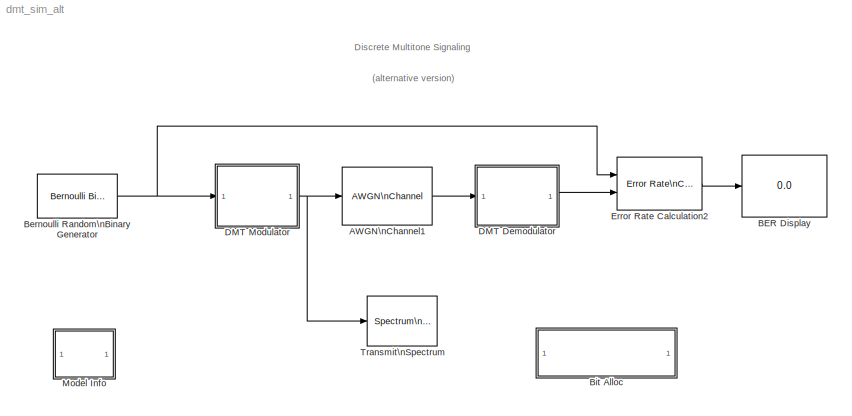
MODEL dmt_sim_alt
KIND model
WORKSPACE source: external: M-Code  (data not in archive)
BLOCK [Reference] AWGN\nChannel1  REF=commchan2/AWGN\nChannel
  EbNodB = 10
  EsNodB = 10
  Ports = [1, 1]
  Ps = 1
  SNRdB = 10
  ShowPortLabels = on
  SourceBlock = commchan2/AWGN\nChannel
  SourceType = AWGN Channel
  Tsym = 1
  bitsPerSym = 1
  noiseMode = Variance from mask
  seed = 12345
  variance = 0.0005
BLOCK [Display] BER Display
  Decimation = 1
  Ports = [1]
BLOCK [Reference] Bernoulli Random\nBinary Generator  REF=commrandsrc2/Bernoulli Binary\nGenerator
  P = 0.5
  Ports = [0, 1]
  ShowPortLabels = on
  SourceBlock = commrandsrc2/Bernoulli Binary\nGenerator
  SourceType = Bernoulli Binary Generator
  Ts = (1/4000)/sum(b)
  frameBased = on
  orient = off
  sampPerFrame = sum(b)
  seed = 1
BLOCK [SubSystem] Bit Alloc
  EnableExecutionContextPropagation = on
  MaskDisplay = disp('Load and Plot\\nBit Allocation Vector')
  MaskIconFrame = on
  MaskIconOpaque = on
  MaskIconRotate = none
  MaskIconUnits = autoscale
  MinAlgLoopOccurrences = off
  OpenFcn = load('bit_allocation'),plot(b),axis([0 257 1 11]),title('Bit Allocations'),xlabel('Channel'),ylabel('No. Bits')
  Ports = []
  TreatAsAtomicUnit = off
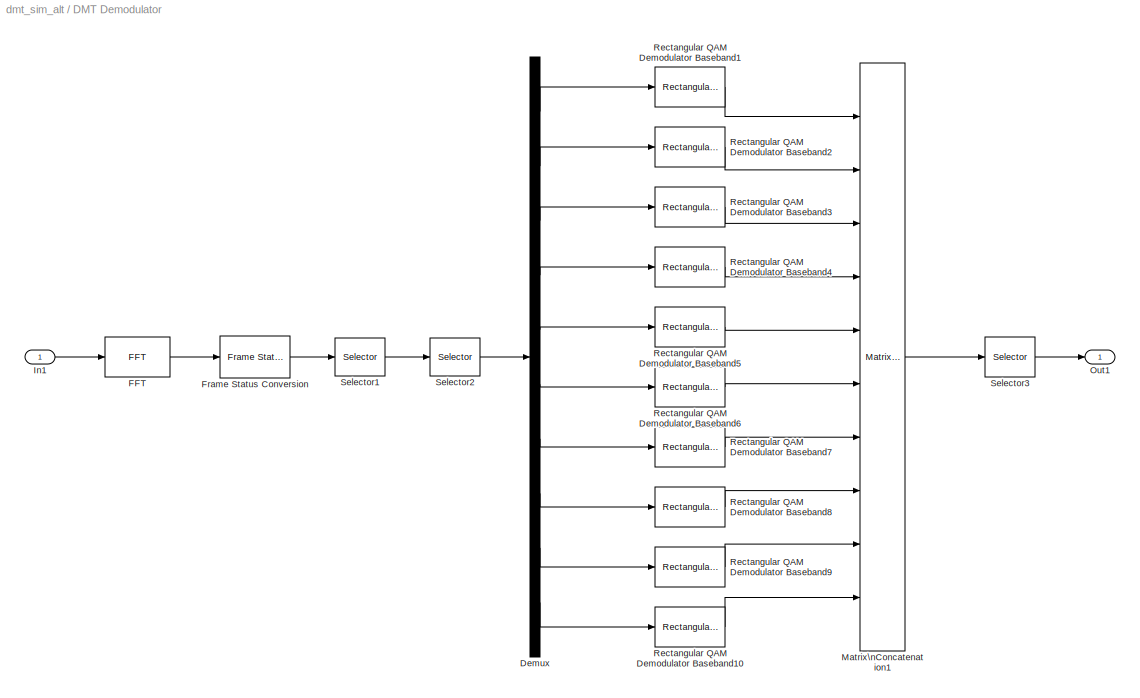
BLOCK [SubSystem] DMT Demodulator
  EnableExecutionContextPropagation = on
  MaskDisplay = disp('DMT\\nDemodulator')
  MaskIconFrame = on
  MaskIconOpaque = on
  MaskIconRotate = none
  MaskIconUnits = autoscale
  MinAlgLoopOccurrences = off
  Ports = [1, 1]
  TreatAsAtomicUnit = off
BLOCK [Demux] DMT Demodulator/Demux
  Outputs = bitalloc(1:end)
  Ports = [1, 10]
BLOCK [Reference] DMT Demodulator/FFT  REF=dspxfrm3/FFT
  BitRevOrder = off
  CompMethod = Table lookup
  Ports = [1, 1]
  SkipNorm = off
  SourceBlock = dspxfrm3/FFT
  SourceType = FFT
  TableOpt = Speed
  accumFracLength = 30
  accumMode = Same as product output
  accumWordLength = 32
  additionalParams = off
  allowOverrides = on
  firstCoeffFracLength = 15
  firstCoeffMode = User-defined
  firstCoeffWordLength = 16
  outputFracLength = 15
  outputMode = Same as input
  outputWordLength = 16
  overflowMode = off
  prodOutputFracLength = 30
  prodOutputMode = Same as input
  prodOutputWordLength = 32
  roundingMode = Floor
BLOCK [Reference] DMT Demodulator/Frame Status Conversion  REF=dspsigattribs/Frame Status\nConversion
  Ports = [1, 1]
  ShowPortLabels = off
  SourceBlock = dspsigattribs/Frame Status\nConversion
  SourceType = Frame Status Conversion
  growRefPort = off
  outframe = Frame-based
BLOCK [Inport] DMT Demodulator/In1
  IconDisplay = Port number
  LatchInput = off
BLOCK [Reference] DMT Demodulator/Matrix\nConcatenation1  REF=simulink/Math\nOperations/Matrix\nConcatenation
  Ports = [10, 1]
  SourceBlock = simulink/Math\nOperations/Matrix\nConcatenation
  SourceType = Matrix Concatenation
  catMethod = Vertical
  numInports = 10
BLOCK [Outport] DMT Demodulator/Out1
  BusOutputAsStruct = off
  IconDisplay = Port number
BLOCK [Reference] DMT Demodulator/Rectangular QAM Demodulator Baseband1  REF=commdigbbndam2/Rectangular QAM\nDemodulator\nBaseband
  AvgPow = 1
  Dec = Binary
  M = 2^1
  MinDist = 2
  OutType = Bit
  PeakPow = 1
  Ph = 0
  Ports = [1, 1]
  PowType = Min. distance between symbols
  SourceBlock = commdigbbndam2/Rectangular QAM\nDemodulator\nBaseband
  SourceType = Rectangular QAM Demodulator Baseband
  numSamp = 1
BLOCK [Reference] DMT Demodulator/Rectangular QAM Demodulator Baseband10  REF=commdigbbndam2/Rectangular QAM\nDemodulator\nBaseband
  AvgPow = 1
  Dec = Binary
  M = 2^10
  MinDist = 2
  OutType = Bit
  PeakPow = 1
  Ph = 0
  Ports = [1, 1]
  PowType = Min. distance between symbols
  SourceBlock = commdigbbndam2/Rectangular QAM\nDemodulator\nBaseband
  SourceType = Rectangular QAM Demodulator Baseband
  numSamp = 1
BLOCK [Reference] DMT Demodulator/Rectangular QAM Demodulator Baseband2  REF=commdigbbndam2/Rectangular QAM\nDemodulator\nBaseband
  AvgPow = 1
  Dec = Binary
  M = 2^2
  MinDist = 2
  OutType = Bit
  PeakPow = 1
  Ph = 0
  Ports = [1, 1]
  PowType = Min. distance between symbols
  SourceBlock = commdigbbndam2/Rectangular QAM\nDemodulator\nBaseband
  SourceType = Rectangular QAM Demodulator Baseband
  numSamp = 1
BLOCK [Reference] DMT Demodulator/Rectangular QAM Demodulator Baseband3  REF=commdigbbndam2/Rectangular QAM\nDemodulator\nBaseband
  AvgPow = 1
  Dec = Binary
  M = 2^3
  MinDist = 2
  OutType = Bit
  PeakPow = 1
  Ph = 0
  Ports = [1, 1]
  PowType = Min. distance between symbols
  SourceBlock = commdigbbndam2/Rectangular QAM\nDemodulator\nBaseband
  SourceType = Rectangular QAM Demodulator Baseband
  numSamp = 1
BLOCK [Reference] DMT Demodulator/Rectangular QAM Demodulator Baseband4  REF=commdigbbndam2/Rectangular QAM\nDemodulator\nBaseband
  AvgPow = 1
  Dec = Binary
  M = 2^4
  MinDist = 2
  OutType = Bit
  PeakPow = 1
  Ph = 0
  Ports = [1, 1]
  PowType = Min. distance between symbols
  SourceBlock = commdigbbndam2/Rectangular QAM\nDemodulator\nBaseband
  SourceType = Rectangular QAM Demodulator Baseband
  numSamp = 1
BLOCK [Reference] DMT Demodulator/Rectangular QAM Demodulator Baseband5  REF=commdigbbndam2/Rectangular QAM\nDemodulator\nBaseband
  AvgPow = 1
  Dec = Binary
  M = 2^5
  MinDist = 2
  OutType = Bit
  PeakPow = 1
  Ph = 0
  Ports = [1, 1]
  PowType = Min. distance between symbols
  SourceBlock = commdigbbndam2/Rectangular QAM\nDemodulator\nBaseband
  SourceType = Rectangular QAM Demodulator Baseband
  numSamp = 1
BLOCK [Reference] DMT Demodulator/Rectangular QAM Demodulator Baseband6  REF=commdigbbndam2/Rectangular QAM\nDemodulator\nBaseband
  AvgPow = 1
  Dec = Binary
  M = 2^6
  MinDist = 2
  OutType = Bit
  PeakPow = 1
  Ph = 0
  Ports = [1, 1]
  PowType = Min. distance between symbols
  SourceBlock = commdigbbndam2/Rectangular QAM\nDemodulator\nBaseband
  SourceType = Rectangular QAM Demodulator Baseband
  numSamp = 1
BLOCK [Reference] DMT Demodulator/Rectangular QAM Demodulator Baseband7  REF=commdigbbndam2/Rectangular QAM\nDemodulator\nBaseband
  AvgPow = 1
  Dec = Binary
  M = 2^7
  MinDist = 2
  OutType = Bit
  PeakPow = 1
  Ph = 0
  Ports = [1, 1]
  PowType = Min. distance between symbols
  SourceBlock = commdigbbndam2/Rectangular QAM\nDemodulator\nBaseband
  SourceType = Rectangular QAM Demodulator Baseband
  numSamp = 1
BLOCK [Reference] DMT Demodulator/Rectangular QAM Demodulator Baseband8  REF=commdigbbndam2/Rectangular QAM\nDemodulator\nBaseband
  AvgPow = 1
  Dec = Binary
  M = 2^8
  MinDist = 2
  OutType = Bit
  PeakPow = 1
  Ph = 0
  Ports = [1, 1]
  PowType = Min. distance between symbols
  SourceBlock = commdigbbndam2/Rectangular QAM\nDemodulator\nBaseband
  SourceType = Rectangular QAM Demodulator Baseband
  numSamp = 1
BLOCK [Reference] DMT Demodulator/Rectangular QAM Demodulator Baseband9  REF=commdigbbndam2/Rectangular QAM\nDemodulator\nBaseband
  AvgPow = 1
  Dec = Binary
  M = 2^9
  MinDist = 2
  OutType = Bit
  PeakPow = 1
  Ph = 0
  Ports = [1, 1]
  PowType = Min. distance between symbols
  SourceBlock = commdigbbndam2/Rectangular QAM\nDemodulator\nBaseband
  SourceType = Rectangular QAM Demodulator Baseband
  numSamp = 1
BLOCK [Selector] DMT Demodulator/Selector1
  Elements = [1:length(b)]
  InputPortWidth = 2*length(b)
  Ports = [1, 1]
BLOCK [Selector] DMT Demodulator/Selector2
  Elements = scrambled
  InputPortWidth = length(b)
  Ports = [1, 1]
BLOCK [Selector] DMT Demodulator/Selector3
  Elements = J
  InputPortWidth = sum(b)
  Ports = [1, 1]
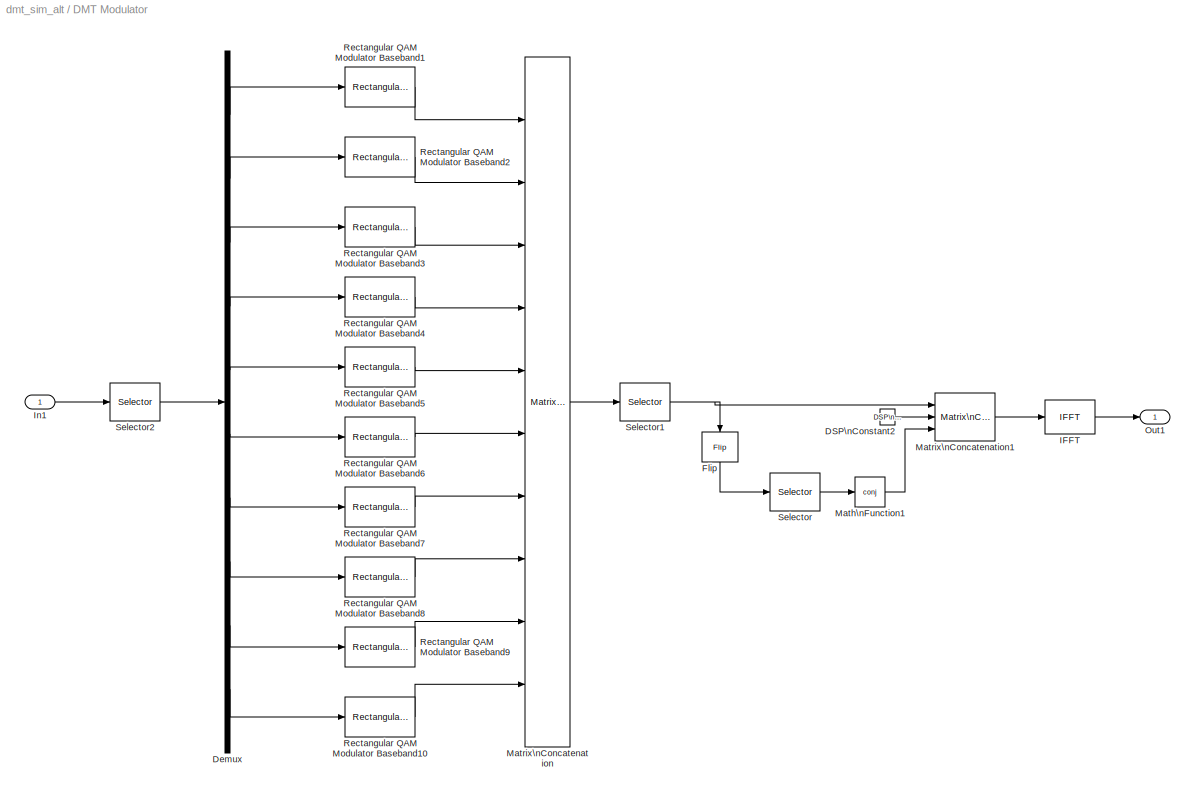
BLOCK [SubSystem] DMT Modulator
  EnableExecutionContextPropagation = on
  MaskDisplay = disp('DMT\\nModulator')
  MaskIconFrame = on
  MaskIconOpaque = on
  MaskIconRotate = none
  MaskIconUnits = autoscale
  MinAlgLoopOccurrences = off
  Ports = [1, 1]
  TreatAsAtomicUnit = off
BLOCK [Reference] DMT Modulator/DSP\nConstant2  REF=dspsrcs4/DSP\nConstant
  FramebasedOutput = on
  InterpretAs1D = off
  Ports = [0, 1]
  SampleMode = Discrete
  ShowPortLabels = on
  SourceBlock = dspsrcs4/DSP\nConstant
  SourceType = DSP Constant
  Ts = (1/4000)
  Value = 0
  additionalParams = off
  allowOverrides = on
  continuousOutput = Sample-based
  dataType = Inherit from 'Constant value'
  discreteOutput = Frame-based
  fracBitsMode = Best precision
  framePeriod = (1/4000)
  numFracBits = 15
  sampTime = (1/4000)
  udDataType = sfix(16)
  wordLen = 16
BLOCK [Demux] DMT Modulator/Demux
  Outputs = [[1:10].*bitalloc(1:end)]'
  Ports = [1, 10]
BLOCK [Reference] DMT Modulator/Flip  REF=dspindex/Flip
  Ports = [1, 1]
  SourceBlock = dspindex/Flip
  SourceType = Flip
  dim = Columns
BLOCK [Reference] DMT Modulator/IFFT  REF=dspxfrm3/IFFT
  BitRevOrder = off
  CompMethod = Table lookup
  Ports = [1, 1]
  SkipNorm = off
  SourceBlock = dspxfrm3/IFFT
  SourceType = IFFT
  TableOpt = Speed
  accumFracLength = 30
  accumMode = Same as product output
  accumWordLength = 32
  additionalParams = off
  allowOverrides = on
  cs_in = on
  firstCoeffFracLength = 15
  firstCoeffMode = User-defined
  firstCoeffWordLength = 16
  mode = Real
  outputFracLength = 15
  outputMode = Same as input
  outputWordLength = 16
  overflowMode = off
  prodOutputFracLength = 30
  prodOutputMode = Same as input
  prodOutputWordLength = 32
  roundingMode = Floor
BLOCK [Inport] DMT Modulator/In1
  IconDisplay = Port number
  LatchInput = off
BLOCK [Math] DMT Modulator/Math\nFunction1
  Operator = conj
  Ports = [1, 1]
BLOCK [Reference] DMT Modulator/Matrix\nConcatenation  REF=simulink/Math\nOperations/Matrix\nConcatenation
  Ports = [10, 1]
  SourceBlock = simulink/Math\nOperations/Matrix\nConcatenation
  SourceType = Matrix Concatenation
  catMethod = Vertical
  numInports = 10
BLOCK [Reference] DMT Modulator/Matrix\nConcatenation1  REF=simulink/Math\nOperations/Matrix\nConcatenation
  Ports = [3, 1]
  SourceBlock = simulink/Math\nOperations/Matrix\nConcatenation
  SourceType = Matrix Concatenation
  catMethod = Vertical
  numInports = 3
BLOCK [Outport] DMT Modulator/Out1
  BusOutputAsStruct = off
  IconDisplay = Port number
BLOCK [Reference] DMT Modulator/Rectangular QAM Modulator Baseband1  REF=commdigbbndam2/Rectangular QAM\nModulator\nBaseband
  AvgPow = 1
  Enc = Binary
  InType = Bit
  M = 2^1
  MinDist = 2
  PeakPow = 1
  Ph = 0
  Ports = [1, 1]
  PowType = Min. distance between symbols
  SourceBlock = commdigbbndam2/Rectangular QAM\nModulator\nBaseband
  SourceType = Rectangular QAM Modulator Baseband
  numSamp = 1
BLOCK [Reference] DMT Modulator/Rectangular QAM Modulator Baseband10  REF=commdigbbndam2/Rectangular QAM\nModulator\nBaseband
  AvgPow = 1
  Enc = Binary
  InType = Bit
  M = 2^10
  MinDist = 2
  PeakPow = 1
  Ph = 0
  Ports = [1, 1]
  PowType = Min. distance between symbols
  SourceBlock = commdigbbndam2/Rectangular QAM\nModulator\nBaseband
  SourceType = Rectangular QAM Modulator Baseband
  numSamp = 1
BLOCK [Reference] DMT Modulator/Rectangular QAM Modulator Baseband2  REF=commdigbbndam2/Rectangular QAM\nModulator\nBaseband
  AvgPow = 1
  Enc = Binary
  InType = Bit
  M = 2^2
  MinDist = 2
  PeakPow = 1
  Ph = 0
  Ports = [1, 1]
  PowType = Min. distance between symbols
  SourceBlock = commdigbbndam2/Rectangular QAM\nModulator\nBaseband
  SourceType = Rectangular QAM Modulator Baseband
  numSamp = 1
BLOCK [Reference] DMT Modulator/Rectangular QAM Modulator Baseband3  REF=commdigbbndam2/Rectangular QAM\nModulator\nBaseband
  AvgPow = 1
  Enc = Binary
  InType = Bit
  M = 2^3
  MinDist = 2
  PeakPow = 1
  Ph = 0
  Ports = [1, 1]
  PowType = Min. distance between symbols
  SourceBlock = commdigbbndam2/Rectangular QAM\nModulator\nBaseband
  SourceType = Rectangular QAM Modulator Baseband
  numSamp = 1
BLOCK [Reference] DMT Modulator/Rectangular QAM Modulator Baseband4  REF=commdigbbndam2/Rectangular QAM\nModulator\nBaseband
  AvgPow = 1
  Enc = Binary
  InType = Bit
  M = 2^4
  MinDist = 2
  PeakPow = 1
  Ph = 0
  Ports = [1, 1]
  PowType = Min. distance between symbols
  SourceBlock = commdigbbndam2/Rectangular QAM\nModulator\nBaseband
  SourceType = Rectangular QAM Modulator Baseband
  numSamp = 1
BLOCK [Reference] DMT Modulator/Rectangular QAM Modulator Baseband5  REF=commdigbbndam2/Rectangular QAM\nModulator\nBaseband
  AvgPow = 1
  Enc = Binary
  InType = Bit
  M = 2^5
  MinDist = 2
  PeakPow = 1
  Ph = 0
  Ports = [1, 1]
  PowType = Min. distance between symbols
  SourceBlock = commdigbbndam2/Rectangular QAM\nModulator\nBaseband
  SourceType = Rectangular QAM Modulator Baseband
  numSamp = 1
BLOCK [Reference] DMT Modulator/Rectangular QAM Modulator Baseband6  REF=commdigbbndam2/Rectangular QAM\nModulator\nBaseband
  AvgPow = 1
  Enc = Binary
  InType = Bit
  M = 2^6
  MinDist = 2
  PeakPow = 1
  Ph = 0
  Ports = [1, 1]
  PowType = Min. distance between symbols
  SourceBlock = commdigbbndam2/Rectangular QAM\nModulator\nBaseband
  SourceType = Rectangular QAM Modulator Baseband
  numSamp = 1
BLOCK [Reference] DMT Modulator/Rectangular QAM Modulator Baseband7  REF=commdigbbndam2/Rectangular QAM\nModulator\nBaseband
  AvgPow = 1
  Enc = Binary
  InType = Bit
  M = 2^7
  MinDist = 2
  PeakPow = 1
  Ph = 0
  Ports = [1, 1]
  PowType = Min. distance between symbols
  SourceBlock = commdigbbndam2/Rectangular QAM\nModulator\nBaseband
  SourceType = Rectangular QAM Modulator Baseband
  numSamp = 1
BLOCK [Reference] DMT Modulator/Rectangular QAM Modulator Baseband8  REF=commdigbbndam2/Rectangular QAM\nModulator\nBaseband
  AvgPow = 1
  Enc = Binary
  InType = Bit
  M = 2^8
  MinDist = 2
  PeakPow = 1
  Ph = 0
  Ports = [1, 1]
  PowType = Min. distance between symbols
  SourceBlock = commdigbbndam2/Rectangular QAM\nModulator\nBaseband
  SourceType = Rectangular QAM Modulator Baseband
  numSamp = 1
BLOCK [Reference] DMT Modulator/Rectangular QAM Modulator Baseband9  REF=commdigbbndam2/Rectangular QAM\nModulator\nBaseband
  AvgPow = 1
  Enc = Binary
  InType = Bit
  M = 2^9
  MinDist = 2
  PeakPow = 1
  Ph = 0
  Ports = [1, 1]
  PowType = Min. distance between symbols
  SourceBlock = commdigbbndam2/Rectangular QAM\nModulator\nBaseband
  SourceType = Rectangular QAM Modulator Baseband
  numSamp = 1
BLOCK [Selector] DMT Modulator/Selector
  Elements = [1:length(b)-1]
  InputPortWidth = length(b)
  Ports = [1, 1]
BLOCK [Selector] DMT Modulator/Selector1
  Elements = I
  InputPortWidth = length(b)
  Ports = [1, 1]
BLOCK [Selector] DMT Modulator/Selector2
  Elements = initscram
  InputPortWidth = sum(b)
  Ports = [1, 1]
BLOCK [Reference] Error Rate Calculation2  REF=commsink2/Error Rate\nCalculation
  N = 0
  PMode = Port
  Ports = [2, 1]
  RsMode2 = off
  SourceBlock = commsink2/Error Rate\nCalculation
  SourceType = Error Rate Calculation
  WsName = ErrorVec
  cp_mode = Entire frame
  maxBits = 1000
  numErr = 100
  st_delay = 0
  stop = off
  subframe = []
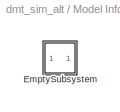
BLOCK [SubSystem] Model Info
  CopyFcn = slcm CopyBlock;
  DeleteFcn = slcm Cancel;
  EnableExecutionContextPropagation = on
  InitFcn = slcm('UpdateAllCMBlocksInThisModelInit')
  LoadFcn = slcm LoadBlock;
  MaskCallbackString = ||||||||||||||||||||||||||||||
  MaskDescription = This block allows revision control information to be displayed within the model.
  MaskDisplay = text(str2num(LeftAlignmentValue), 0.5, MaskDisplayString, 'HorizontalAlignment', HorizontalTextAlignment)\n
  MaskEnableString = on,on,on,on,on,on,on,on,on,on,on,on,on,on,on,on,on,on,on,on,on,on,on,on,on,on,on,on,on,on,on
  MaskIconFrame = on
  MaskIconOpaque = on
  MaskIconRotate = none
  MaskIconUnits = normalized
  MaskPromptString = InitialSaveTempField|InitialBlockCM|BlockCM|Frame|SaveTempField|DisplayStringWithTags|MaskDisplayString|HorizontalTextAlignment|LeftAlignmentValue|SourceBlockDiagram|TagMaxNumber|CMTag1|CMTag2|CMTag3|CMTag4|CMTag5|CMTag6|CMTag7|CMTag8|CMTag9|CMTag10|CMTag11|CMTag12|CMTag13|CMTag14|CMTag15|CMTag16|CMTag17|CMTag18|CMTag19|CMTag20
  MaskSelfModifiable = on
  MaskStyleString = edit,edit,edit,edit,edit,edit,edit,edit,edit,edit,edit,edit,edit,edit,edit,edit,edit,edit,edit,edit,edit,edit,edit,edit,edit,edit,edit,edit,edit,edit,edit
  MaskTabNameString = ,,,,,,,,,,,,,,,,,,,,,,,,,,,,,,
  MaskToolTipString = on,on,on,on,on,on,on,on,on,on,on,on,on,on,on,on,on,on,on,on,on,on,on,on,on,on,on,on,on,on,on
  MaskTunableValueString = on,on,on,on,on,on,on,on,on,on,on,on,on,on,on,on,on,on,on,on,on,on,on,on,on,on,on,on,on,on,on
  MaskType = CMBlock
  MaskValueString = |none|none|on||Info|Info|Center|0.5|dmt_sim_alt|20||||||||||||||||||||
  MaskVarAliasString = ,,,,,,,,,,,,,,,,,,,,,,,,,,,,,,
  MaskVariables = InitialSaveTempField=&1;InitialBlockCM=&2;BlockCM=&3;Frame=&4;SaveTempField=&5;DisplayStringWithTags=&6;MaskDisplayString=&7;HorizontalTextAlignment=&8;LeftAlignmentValue=&9;SourceBlockDiagram=&10;TagMaxNumber=@11;CMTag1=&12;CMTag2=&13;CMTag3=&14;CMTag4=&15;CMTag5=&16;CMTag6=&17;CMTag7=&18;CMTag8=&19;CMTag9=&20;CMTag10=&21;CMTag11=&22;CMTag12=&23;CMTag13=&24;CMTag14=&25;CMTag15=&26;CMTag16=&27;CMT...<+45ch>
  MaskVisibilityString = off,off,off,off,off,off,off,off,off,off,off,off,off,off,off,off,off,off,off,off,off,off,off,off,off,off,off,off,off,off,off
  MinAlgLoopOccurrences = off
  NameChangeFcn = slcm Rename;
  OpenFcn = commdemohelp;
  Ports = []
  PostSaveFcn = slcm('UpdateAllCMBlocksInThisModel')
  TreatAsAtomicUnit = off
BLOCK [SubSystem] Model Info/EmptySubsystem
  EnableExecutionContextPropagation = on
  MinAlgLoopOccurrences = off
  Ports = []
  TreatAsAtomicUnit = off
BLOCK [Reference] Transmit\nSpectrum  REF=dspsnks4/Spectrum\nScope
  AxisGrid = on
  AxisLegend = off
  AxisProperties = off
  AxisZoom = off
  BufferSize = 128
  DisplayProperties = off
  Domain = Frequency
  FFTlength = 128
  FigPos = [13 58 560 460]
  FrameNumber = on
  HorizSpan = 1
  InheritXIncr = on
  LineProperties = off
  Memory = off
  OpenScopeAtSimStart = on
  OpenScopeImmediately = off
  Overlap = 64
  Ports = [1]
  ScopeProperties = on
  ShowPortLabels = off
  SourceBlock = dspsnks4/Spectrum\nScope
  SourceType = Spectrum Scope
  UseBuffer = off
  XIncr = 1.0
  XLabel = Samples
  XRange = [0...Fs/2]
  XUnits = Hertz
  YLabel = Magnitude, dB
  YMax = 2.87787537591037
  YMin = -29.4450835994331
  YUnits = dB
  inpFftLenInherit = off
  numAvg = 50
ANNOTATION (root): Discrete Multitone Signaling
ANNOTATION (root): (alternative version)
LINE AWGN\nChannel1:1 -> DMT Demodulator:1
NET Bernoulli Random\nBinary Generator:1 -> DMT Modulator:1, Error Rate Calculation2:1
LINE DMT Demodulator/Demux:1 -> DMT Demodulator/Rectangular QAM Demodulator Baseband1:1
LINE DMT Demodulator/Demux:10 -> DMT Demodulator/Rectangular QAM Demodulator Baseband10:1
LINE DMT Demodulator/Demux:2 -> DMT Demodulator/Rectangular QAM Demodulator Baseband2:1
LINE DMT Demodulator/Demux:3 -> DMT Demodulator/Rectangular QAM Demodulator Baseband3:1
LINE DMT Demodulator/Demux:4 -> DMT Demodulator/Rectangular QAM Demodulator Baseband4:1
LINE DMT Demodulator/Demux:5 -> DMT Demodulator/Rectangular QAM Demodulator Baseband5:1
LINE DMT Demodulator/Demux:6 -> DMT Demodulator/Rectangular QAM Demodulator Baseband6:1
LINE DMT Demodulator/Demux:7 -> DMT Demodulator/Rectangular QAM Demodulator Baseband7:1
LINE DMT Demodulator/Demux:8 -> DMT Demodulator/Rectangular QAM Demodulator Baseband8:1
LINE DMT Demodulator/Demux:9 -> DMT Demodulator/Rectangular QAM Demodulator Baseband9:1
LINE DMT Demodulator/FFT:1 -> DMT Demodulator/Frame Status Conversion:1
LINE DMT Demodulator/Frame Status Conversion:1 -> DMT Demodulator/Selector1:1
LINE DMT Demodulator/In1:1 -> DMT Demodulator/FFT:1
LINE DMT Demodulator/Matrix\nConcatenation1:1 -> DMT Demodulator/Selector3:1
LINE DMT Demodulator/Rectangular QAM Demodulator Baseband10:1 -> DMT Demodulator/Matrix\nConcatenation1:10
LINE DMT Demodulator/Rectangular QAM Demodulator Baseband1:1 -> DMT Demodulator/Matrix\nConcatenation1:1
LINE DMT Demodulator/Rectangular QAM Demodulator Baseband2:1 -> DMT Demodulator/Matrix\nConcatenation1:2
LINE DMT Demodulator/Rectangular QAM Demodulator Baseband3:1 -> DMT Demodulator/Matrix\nConcatenation1:3
LINE DMT Demodulator/Rectangular QAM Demodulator Baseband4:1 -> DMT Demodulator/Matrix\nConcatenation1:4
LINE DMT Demodulator/Rectangular QAM Demodulator Baseband5:1 -> DMT Demodulator/Matrix\nConcatenation1:5
LINE DMT Demodulator/Rectangular QAM Demodulator Baseband6:1 -> DMT Demodulator/Matrix\nConcatenation1:6
LINE DMT Demodulator/Rectangular QAM Demodulator Baseband7:1 -> DMT Demodulator/Matrix\nConcatenation1:7
LINE DMT Demodulator/Rectangular QAM Demodulator Baseband8:1 -> DMT Demodulator/Matrix\nConcatenation1:8
LINE DMT Demodulator/Rectangular QAM Demodulator Baseband9:1 -> DMT Demodulator/Matrix\nConcatenation1:9
LINE DMT Demodulator/Selector1:1 -> DMT Demodulator/Selector2:1
LINE DMT Demodulator/Selector2:1 -> DMT Demodulator/Demux:1
LINE DMT Demodulator/Selector3:1 -> DMT Demodulator/Out1:1
LINE DMT Demodulator:1 -> Error Rate Calculation2:2
LINE DMT Modulator/DSP\nConstant2:1 -> DMT Modulator/Matrix\nConcatenation1:2
LINE DMT Modulator/Demux:1 -> DMT Modulator/Rectangular QAM Modulator Baseband1:1
LINE DMT Modulator/Demux:10 -> DMT Modulator/Rectangular QAM Modulator Baseband10:1
LINE DMT Modulator/Demux:2 -> DMT Modulator/Rectangular QAM Modulator Baseband2:1
LINE DMT Modulator/Demux:3 -> DMT Modulator/Rectangular QAM Modulator Baseband3:1
LINE DMT Modulator/Demux:4 -> DMT Modulator/Rectangular QAM Modulator Baseband4:1
LINE DMT Modulator/Demux:5 -> DMT Modulator/Rectangular QAM Modulator Baseband5:1
LINE DMT Modulator/Demux:6 -> DMT Modulator/Rectangular QAM Modulator Baseband6:1
LINE DMT Modulator/Demux:7 -> DMT Modulator/Rectangular QAM Modulator Baseband7:1
LINE DMT Modulator/Demux:8 -> DMT Modulator/Rectangular QAM Modulator Baseband8:1
LINE DMT Modulator/Demux:9 -> DMT Modulator/Rectangular QAM Modulator Baseband9:1
LINE DMT Modulator/Flip:1 -> DMT Modulator/Selector:1
LINE DMT Modulator/IFFT:1 -> DMT Modulator/Out1:1
LINE DMT Modulator/In1:1 -> DMT Modulator/Selector2:1
LINE DMT Modulator/Math\nFunction1:1 -> DMT Modulator/Matrix\nConcatenation1:3
LINE DMT Modulator/Matrix\nConcatenation1:1 -> DMT Modulator/IFFT:1
LINE DMT Modulator/Matrix\nConcatenation:1 -> DMT Modulator/Selector1:1
LINE DMT Modulator/Rectangular QAM Modulator Baseband10:1 -> DMT Modulator/Matrix\nConcatenation:10
LINE DMT Modulator/Rectangular QAM Modulator Baseband1:1 -> DMT Modulator/Matrix\nConcatenation:1
LINE DMT Modulator/Rectangular QAM Modulator Baseband2:1 -> DMT Modulator/Matrix\nConcatenation:2
LINE DMT Modulator/Rectangular QAM Modulator Baseband3:1 -> DMT Modulator/Matrix\nConcatenation:3
LINE DMT Modulator/Rectangular QAM Modulator Baseband4:1 -> DMT Modulator/Matrix\nConcatenation:4
LINE DMT Modulator/Rectangular QAM Modulator Baseband5:1 -> DMT Modulator/Matrix\nConcatenation:5
LINE DMT Modulator/Rectangular QAM Modulator Baseband6:1 -> DMT Modulator/Matrix\nConcatenation:6
LINE DMT Modulator/Rectangular QAM Modulator Baseband7:1 -> DMT Modulator/Matrix\nConcatenation:7
LINE DMT Modulator/Rectangular QAM Modulator Baseband8:1 -> DMT Modulator/Matrix\nConcatenation:8
LINE DMT Modulator/Rectangular QAM Modulator Baseband9:1 -> DMT Modulator/Matrix\nConcatenation:9
NET DMT Modulator/Selector1:1 -> DMT Modulator/Flip:1, DMT Modulator/Matrix\nConcatenation1:1
LINE DMT Modulator/Selector2:1 -> DMT Modulator/Demux:1
LINE DMT Modulator/Selector:1 -> DMT Modulator/Math\nFunction1:1
NET DMT Modulator:1 -> AWGN\nChannel1:1, Transmit\nSpectrum:1
LINE Error Rate Calculation2:1 -> BER Display:1
note: NET lines group one-source signal fan-out (src -> all destinations, sorted); 1:1 wires keep LINE
